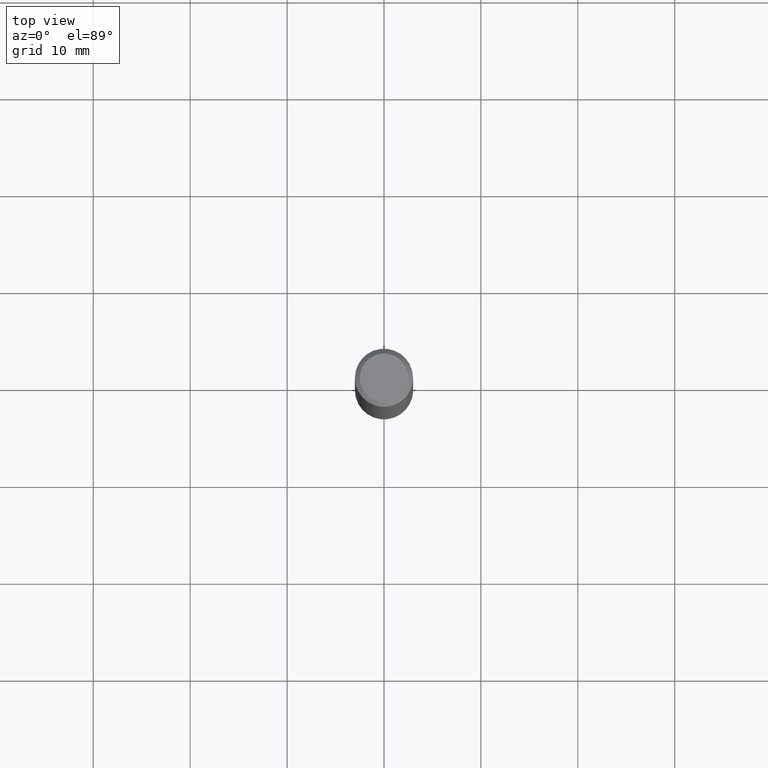
[diagram: clean part render]
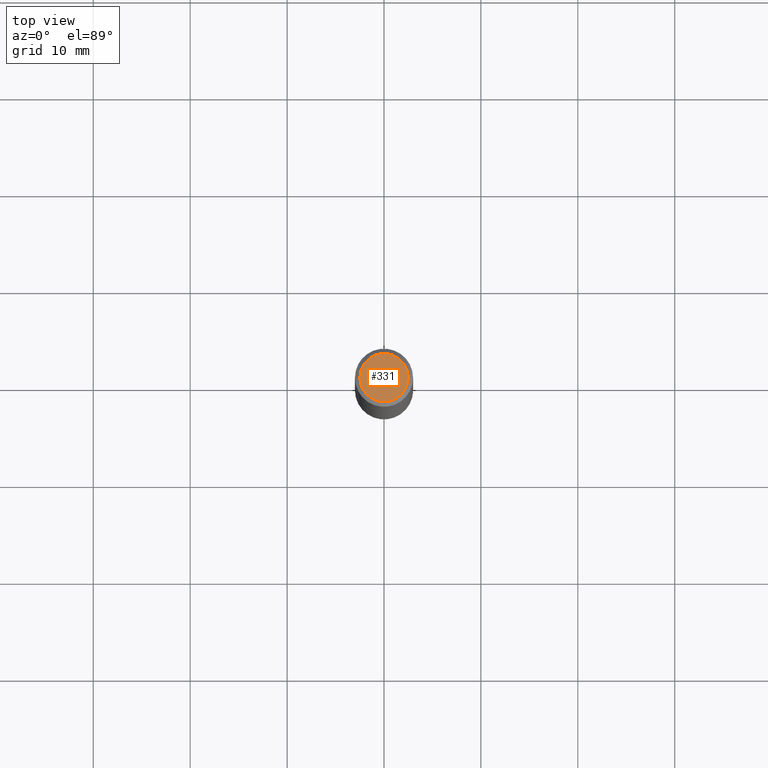
[diagram: same view with one face highlighted and labeled with its STEP entity id]
A machine part, top view. The second image highlights one B-rep face of the part: STEP entity #331.
In plain terms, the highlighted planar face has unit normal (0, -0, -1).
Its self-contained STEP definition (entity closure, byte-faithful):
#5 = CIRCLE ( 'NONE', #247, 0.09809999999999979847 ) ;
#28 = EDGE_CURVE ( 'NONE', #139, #55, #184, .T. ) ;
#55 = VERTEX_POINT ( 'NONE', #241 ) ;
#65 = CARTESIAN_POINT ( 'NONE',  ( 2.087702828670439639E-46, -2.980686340760894400E-32, -8.537024980200822558E-18 ) ) ;
#73 = DIRECTION ( 'NONE',  ( -2.445468806185136597E-29, 3.491481338843145583E-15, 1.000000000000000000 ) ) ;
#77 = DIRECTION ( 'NONE',  ( 2.438088387897960049E-29, -3.491481338843145188E-15, -1.000000000000000000 ) ) ;
#83 = DIRECTION ( 'NONE',  ( 1.000000000000000000, -6.982962677686267499E-15, 4.876195163481342132E-29 ) ) ;
#114 = CARTESIAN_POINT ( 'NONE',  ( 6.850286386810212718E-16, 0.09809999999999979847, -3.467828318306122952E-16 ) ) ;
#123 = CARTESIAN_POINT ( 'NONE',  ( -0.09809999999999979847, 7.199434520694525264E-16, -8.537024980205735990E-18 ) ) ;
#131 = CARTESIAN_POINT ( 'NONE',  ( 2.087702828670439639E-46, -2.980686340760894400E-32, -8.537024980200822558E-18 ) ) ;
#135 = DIRECTION ( 'NONE',  ( -1.000000000000000000, 6.982962677686265922E-15, -4.876176775795935793E-29 ) ) ;
#139 = VERTEX_POINT ( 'NONE', #123 ) ;
#147 = ORIENTED_EDGE ( 'NONE', *, *, #223, .T. ) ;
#166 = PLANE ( 'NONE',  #360 ) ;
#174 = EDGE_LOOP ( 'NONE', ( #322, #147 ) ) ;
#184 = CIRCLE ( 'NONE', #343, 0.09809999999999979847 ) ;
#186 = DIRECTION ( 'NONE',  ( 1.000000000000000000, -6.982962677686267499E-15, 4.876195163481342132E-29 ) ) ;
#223 = EDGE_CURVE ( 'NONE', #55, #139, #5, .T. ) ;
#241 = CARTESIAN_POINT ( 'NONE',  ( 0.09809999999999979847, -7.765346469475326737E-16, -8.537024980195711910E-18 ) ) ;
#247 = AXIS2_PLACEMENT_3D ( 'NONE', #131, #73, #186 ) ;
#322 = ORIENTED_EDGE ( 'NONE', *, *, #28, .T. ) ;
#331 = ADVANCED_FACE ( 'NONE', ( #332 ), #166, .F. ) ;
#332 = FACE_OUTER_BOUND ( 'NONE', #174, .T. ) ;
#343 = AXIS2_PLACEMENT_3D ( 'NONE', #65, #351, #83 ) ;
#351 = DIRECTION ( 'NONE',  ( -2.445468806185136597E-29, 3.491481338843145583E-15, 1.000000000000000000 ) ) ;
#360 = AXIS2_PLACEMENT_3D ( 'NONE', #114, #77, #135 ) ;